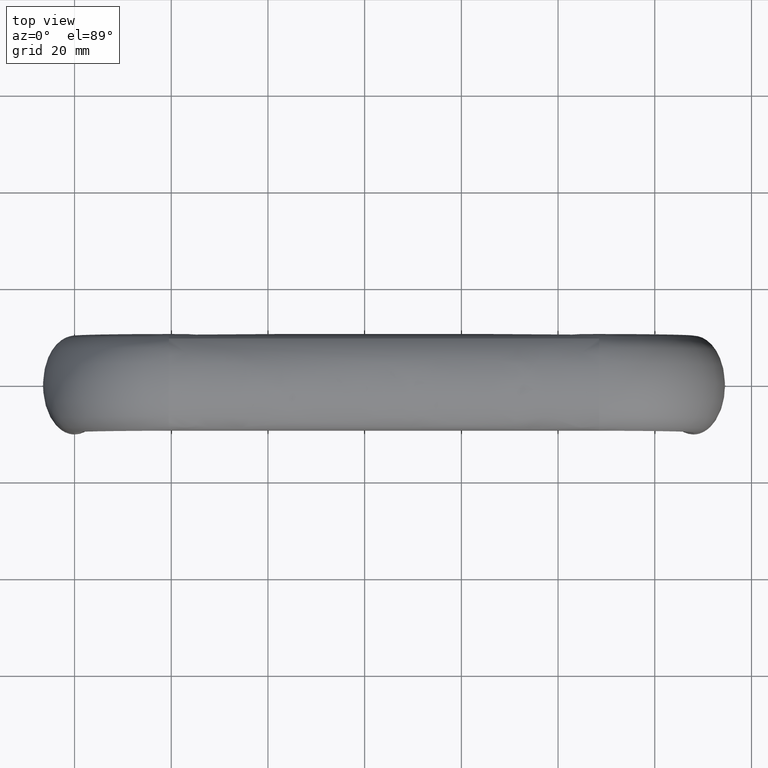
[diagram: clean part render]
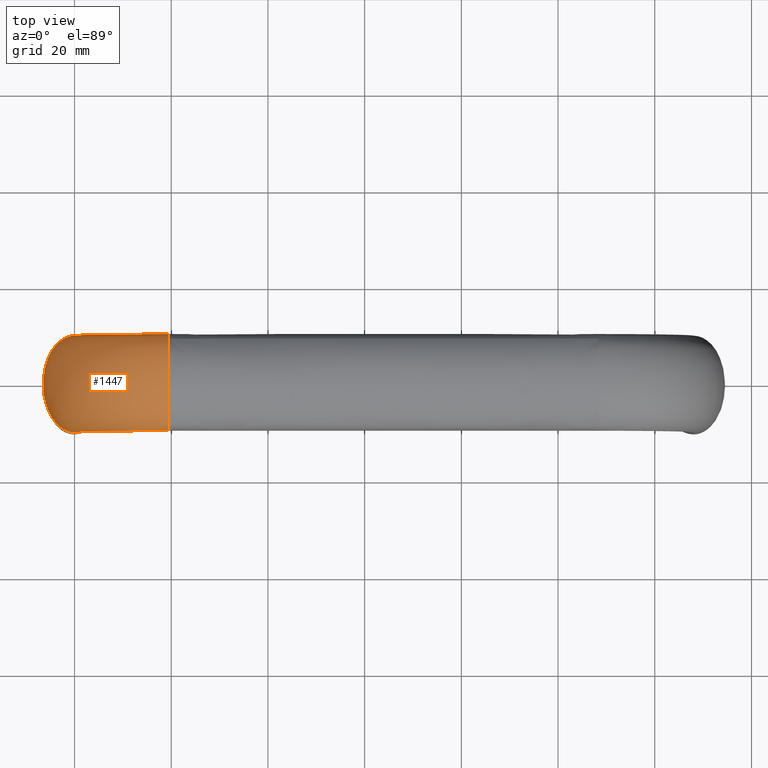
[diagram: same view with one face highlighted and labeled with its STEP entity id]
A machine part, top view. The second image highlights one B-rep face of the part: STEP entity #1447.
In plain terms, the highlighted face is a freeform B-spline surface patch.
Its self-contained STEP definition (entity closure, byte-faithful):
#998=CARTESIAN_POINT('',(19.500000000000000,9.039503756692850,47.265141685643357));
#999=VERTEX_POINT('',#998);
#1017=CARTESIAN_POINT('',(19.500000000000000,-10.0,44.499999999999950));
#1018=VERTEX_POINT('',#1017);
#1019=CARTESIAN_POINT('',(19.500000000000000,9.039503756692850,47.265141685643357));
#1020=CARTESIAN_POINT('',(19.500000000000000,8.550381046451999,47.942842478044980));
#1021=CARTESIAN_POINT('',(19.500000000000000,7.885596350320671,48.566750527716643));
#1022=CARTESIAN_POINT('',(19.500000000000000,5.219866587632820,50.299474873463701));
#1023=CARTESIAN_POINT('',(19.500000000000000,2.617993877991495,51.0));
#1024=CARTESIAN_POINT('',(19.500000000000000,-2.617993877991495,51.0));
#1025=CARTESIAN_POINT('',(19.500000000000000,-5.219866587632820,50.299474873463701));
#1026=CARTESIAN_POINT('',(19.500000000000000,-8.922269036098131,47.892913281961299));
#1027=CARTESIAN_POINT('',(19.500000000000000,-10.0,46.201696020694399));
#1028=CARTESIAN_POINT('',(19.500000000000000,-10.0,44.499999999999950));
#1029=B_SPLINE_CURVE_WITH_KNOTS('',3,(#1019,#1020,#1021,#1022,#1023,#1024,#1025,#1026,#1027,#1028),.UNSPECIFIED.,.F.,.U.,(4,2,2,2,4),(0.570000000013989,0.625000000000000,0.750000000000000,0.875000000000000,1.0),.UNSPECIFIED.);
#1030=EDGE_CURVE('',#999,#1018,#1029,.T.);
#1225=CARTESIAN_POINT('',(19.500000000000000,8.755444309227860,41.370782612510382));
#1226=VERTEX_POINT('',#1225);
#1240=CARTESIAN_POINT('',(19.500000000000000,10.0,44.499999999999950));
#1241=VERTEX_POINT('',#1240);
#1242=CARTESIAN_POINT('',(19.500000000000000,8.755444309227860,41.370782612510382));
#1243=CARTESIAN_POINT('',(19.500000000000000,9.558561397034483,42.326121193000773));
#1244=CARTESIAN_POINT('',(19.500000000000000,10.0,43.410914546568847));
#1245=CARTESIAN_POINT('',(19.500000000000000,10.0,44.499999999999950));
#1246=B_SPLINE_CURVE_WITH_KNOTS('',3,(#1242,#1243,#1244,#1245),.UNSPECIFIED.,.F.,.U.,(4,4),(0.419999999986289,0.500000000000000),.UNSPECIFIED.);
#1247=EDGE_CURVE('',#1226,#1241,#1246,.T.);
#1249=CARTESIAN_POINT('',(19.500000000000000,10.0,44.499999999999950));
#1250=CARTESIAN_POINT('',(19.500000000000000,10.0,45.452949771779302));
#1251=CARTESIAN_POINT('',(19.500000000000000,9.662023569585280,46.402613404600842));
#1252=CARTESIAN_POINT('',(19.500000000000000,9.039503756692850,47.265141685643357));
#1253=B_SPLINE_CURVE_WITH_KNOTS('',3,(#1249,#1250,#1251,#1252),.UNSPECIFIED.,.F.,.U.,(4,4),(0.500000000000000,0.570000000013990),.UNSPECIFIED.);
#1254=EDGE_CURVE('',#1241,#999,#1253,.T.);
#1260=CARTESIAN_POINT('',(3.129217387244046,8.755444309434322,25.0));
#1261=CARTESIAN_POINT('',(2.173878806627423,9.558561397185795,25.0));
#1262=CARTESIAN_POINT('',(1.089085453244511,10.0,25.0));
#1263=CARTESIAN_POINT('',(-1.701696020694420,10.0,25.0));
#1264=CARTESIAN_POINT('',(-3.392913281961285,8.922269036098131,25.0));
#1265=CARTESIAN_POINT('',(-5.799474873463730,5.219866587632820,25.0));
#1266=CARTESIAN_POINT('',(-6.500000000000000,2.617993877991495,25.0));
#1267=CARTESIAN_POINT('',(-6.500000000000000,-2.617993877991495,25.0));
#1268=CARTESIAN_POINT('',(-5.799474873463730,-5.219866587632820,25.0));
#1269=CARTESIAN_POINT('',(-3.392913281961285,-8.922269036098131,25.0));
#1270=CARTESIAN_POINT('',(-1.701696020694420,-10.0,25.0));
#1271=CARTESIAN_POINT('',(4.998172E-014,-10.0,25.0));
#1272=CARTESIAN_POINT('',(3.129242525255061,8.755444309434322,27.143280771253870));
#1273=CARTESIAN_POINT('',(2.173906213007534,9.558561397185795,27.268354742721009));
#1274=CARTESIAN_POINT('',(1.089115505749756,10.0,27.410377074506400));
#1275=CARTESIAN_POINT('',(-1.701658946265320,10.0,27.775749235914951));
#1276=CARTESIAN_POINT('',(-3.392871781341585,8.922269036098131,27.997165248405398));
#1277=CARTESIAN_POINT('',(-5.799426911635780,5.219866587632820,28.312234922394701));
#1278=CARTESIAN_POINT('',(-6.499950125228801,2.617993877991495,28.403948437618151));
#1279=CARTESIAN_POINT('',(-6.499950125228801,-2.617993877991495,28.403948437618151));
#1280=CARTESIAN_POINT('',(-5.799426911635780,-5.219866587632820,28.312234922394701));
#1281=CARTESIAN_POINT('',(-3.392871781341585,-8.922269036098131,27.997165248405398));
#1282=CARTESIAN_POINT('',(-1.701658946265315,-10.0,27.775749235914951));
#1283=CARTESIAN_POINT('',(0.000032792768265,-10.0,27.552961332617048));
#1284=CARTESIAN_POINT('',(3.555305081969468,8.755444309434322,29.285017816729340));
#1285=CARTESIAN_POINT('',(2.624831409960165,9.558561397185795,29.535075675035390));
#1286=CARTESIAN_POINT('',(1.568272326748048,10.0,29.819018047044359));
#1287=CARTESIAN_POINT('',(-1.149872568180168,10.0,30.549499211036348));
#1288=CARTESIAN_POINT('',(-2.797071966576600,8.922269036098131,30.992171761760950));
#1289=CARTESIAN_POINT('',(-5.140997195176130,5.219866587632820,31.622084181982359));
#1290=CARTESIAN_POINT('',(-5.823289525924990,2.617993877991495,31.805445156182149));
#1291=CARTESIAN_POINT('',(-5.823289525924990,-2.617993877991495,31.805445156182149));
#1292=CARTESIAN_POINT('',(-5.140997195176130,-5.219866587632820,31.622084181982359));
#1293=CARTESIAN_POINT('',(-2.797071966576050,-8.922269036098131,30.992171761760950));
#1294=CARTESIAN_POINT('',(-1.149872568180444,-10.0,30.549499211036348));
#1295=CARTESIAN_POINT('',(0.507532855556411,-10.0,30.104083867138801));
#1296=CARTESIAN_POINT('',(5.195432943796783,8.755444309434322,33.244636744775029));
#1297=CARTESIAN_POINT('',(4.360671093305921,9.558561397185795,33.725763380671289));
#1298=CARTESIAN_POINT('',(3.412793424128525,10.0,34.272085896421132));
#1299=CARTESIAN_POINT('',(0.974246552089016,10.0,35.677576399284852));
#1300=CARTESIAN_POINT('',(-0.503516074943048,8.922269036098131,36.529305501393637));
#1301=CARTESIAN_POINT('',(-2.606336842577320,5.219866587632820,37.741295581240550));
#1302=CARTESIAN_POINT('',(-3.218446164661845,2.617993877991495,38.094093326802501));
#1303=CARTESIAN_POINT('',(-3.218446164661845,-2.617993877991495,38.094093326802501));
#1304=CARTESIAN_POINT('',(-2.606336842577320,-5.219866587632820,37.741295581240550));
#1305=CARTESIAN_POINT('',(-0.503516074943599,-8.922269036098131,36.529305501393637));
#1306=CARTESIAN_POINT('',(0.974246552089294,-10.0,35.677576399284852));
#1307=CARTESIAN_POINT('',(2.461165376503490,-10.0,34.820569995099653));
#1308=CARTESIAN_POINT('',(6.408828038949688,8.755444309434322,35.060610836567477));
#1309=CARTESIAN_POINT('',(5.644875457346496,9.558561397185795,35.647711032329227));
#1310=CARTESIAN_POINT('',(4.777402186992800,10.0,36.314367234701329));
#1311=CARTESIAN_POINT('',(2.545706791283275,10.0,38.029432849052149));
#1312=CARTESIAN_POINT('',(1.193296432264130,8.922269036098131,39.068764877845503));
#1313=CARTESIAN_POINT('',(-0.731151065112885,5.219866587632820,40.547709421855799));
#1314=CARTESIAN_POINT('',(-1.291337777711756,2.617993877991495,40.978214843985363));
#1315=CARTESIAN_POINT('',(-1.291337777711756,-2.617993877991495,40.978214843985363));
#1316=CARTESIAN_POINT('',(-0.731151065112885,-5.219866587632820,40.547709421855799));
#1317=CARTESIAN_POINT('',(1.193296432264684,-8.922269036098131,39.068764877836649));
#1318=CARTESIAN_POINT('',(2.545706791283280,-10.0,38.029432849061003));
#1319=CARTESIAN_POINT('',(3.906496666715915,-10.0,36.983661132993433));
#1320=CARTESIAN_POINT('',(9.439389163429212,8.755444309434322,38.091171961053732));
#1321=CARTESIAN_POINT('',(8.852288967666116,9.558561397185795,38.855124542658260));
#1322=CARTESIAN_POINT('',(8.185632765293509,10.0,39.722597813012463));
#1323=CARTESIAN_POINT('',(6.470567150939020,10.0,41.954293208725652));
#1324=CARTESIAN_POINT('',(5.431235122155091,8.922269036098131,43.306703567735347));
#1325=CARTESIAN_POINT('',(3.952290578143170,5.219866587632820,45.231151065113991));
#1326=CARTESIAN_POINT('',(3.521785156011395,2.617993877991495,45.791337777715093));
#1327=CARTESIAN_POINT('',(3.521785156011395,-2.617993877991495,45.791337777715093));
#1328=CARTESIAN_POINT('',(3.952290578143170,-5.219866587632820,45.231151065113991));
#1329=CARTESIAN_POINT('',(5.431235122154540,-8.922269036098131,43.306703567744201));
#1330=CARTESIAN_POINT('',(6.470567150939020,-10.0,41.954293208716749));
#1331=CARTESIAN_POINT('',(7.516338867008830,-10.0,40.593503333281902));
#1332=CARTESIAN_POINT('',(11.255363255153309,8.755444309434322,39.304567056183622));
#1333=CARTESIAN_POINT('',(10.774236619254220,9.558561397185795,40.139328906674393));
#1334=CARTESIAN_POINT('',(10.227914103500760,10.0,41.087206575851461));
#1335=CARTESIAN_POINT('',(8.822423600624351,10.0,43.525753447885499));
#1336=CARTESIAN_POINT('',(7.970694498504469,8.922269036098131,45.003516074918707));
#1337=CARTESIAN_POINT('',(6.758704418655350,5.219866587632820,47.106336842543001));
#1338=CARTESIAN_POINT('',(6.405906673088980,2.617993877991495,47.718446164620900));
#1339=CARTESIAN_POINT('',(6.405906673088980,-2.617993877991495,47.718446164620900));
#1340=CARTESIAN_POINT('',(6.758704418655350,-5.219866587632820,47.106336842543001));
#1341=CARTESIAN_POINT('',(7.970694498504469,-8.922269036098131,45.003516074909797));
#1342=CARTESIAN_POINT('',(8.822423600624351,-10.0,43.525753447876653));
#1343=CARTESIAN_POINT('',(9.679430004816185,-10.0,42.038834623465647));
#1344=CARTESIAN_POINT('',(15.214982183342300,8.755444309434322,40.944694918050153));
#1345=CARTESIAN_POINT('',(14.964924325039050,9.558561397185795,41.875168590059552));
#1346=CARTESIAN_POINT('',(14.680981953033671,10.0,42.931727673271958));
#1347=CARTESIAN_POINT('',(13.950500789054381,10.0,45.649872568205602));
#1348=CARTESIAN_POINT('',(13.507828238340860,8.922269036098131,47.297071966601003));
#1349=CARTESIAN_POINT('',(12.877915818121700,5.219866587632820,49.640997195210403));
#1350=CARTESIAN_POINT('',(12.694554843926319,2.617993877991495,50.323289525965912));
#1351=CARTESIAN_POINT('',(12.694554843926319,-2.617993877991495,50.323289525965912));
#1352=CARTESIAN_POINT('',(12.877915818121700,-5.219866587632820,49.640997195210403));
#1353=CARTESIAN_POINT('',(13.507828238340860,-8.922269036098131,47.297071966609799));
#1354=CARTESIAN_POINT('',(13.950500789054381,-10.0,45.649872568214498));
#1355=CARTESIAN_POINT('',(14.395916132945301,-10.0,43.992467144474453));
#1356=CARTESIAN_POINT('',(17.356769276508889,8.755444309434322,41.361454487678607));
#1357=CARTESIAN_POINT('',(17.231695834144372,9.558561397185795,42.316497935335711));
#1358=CARTESIAN_POINT('',(17.089673974340378,10.0,43.400978050230577));
#1359=CARTESIAN_POINT('',(16.724302669476351,10.0,46.191020352625600));
#1360=CARTESIAN_POINT('',(16.502886928091851,8.922269036098131,47.881842823258197));
#1361=CARTESIAN_POINT('',(16.187817438960849,5.219866587632820,50.287893282920002));
#1362=CARTESIAN_POINT('',(16.096103941902200,2.617993877991495,50.988279623751801));
#1363=CARTESIAN_POINT('',(16.096103941902200,-2.617993877991495,50.988279623751801));
#1364=CARTESIAN_POINT('',(16.187817438960849,-5.219866587632820,50.287893282920002));
#1365=CARTESIAN_POINT('',(16.502886928091900,-8.922269036098131,47.881842823248597));
#1366=CARTESIAN_POINT('',(16.724302669476302,-10.0,46.191020352625600));
#1367=CARTESIAN_POINT('',(16.947090050490129,-10.0,44.489775046287178));
#1368=CARTESIAN_POINT('',(19.500000000000000,8.755444309434322,41.370782612755981));
#1369=CARTESIAN_POINT('',(19.500000000000000,9.558561397185795,42.326121193372600));
#1370=CARTESIAN_POINT('',(19.500000000000000,10.0,43.410914546755500));
#1371=CARTESIAN_POINT('',(19.500000000000000,10.0,46.201696020694399));
#1372=CARTESIAN_POINT('',(19.500000000000000,8.922269036098131,47.892913281961299));
#1373=CARTESIAN_POINT('',(19.500000000000000,5.219866587632820,50.299474873463701));
#1374=CARTESIAN_POINT('',(19.500000000000000,2.617993877991495,51.0));
#1375=CARTESIAN_POINT('',(19.500000000000000,-2.617993877991495,51.0));
#1376=CARTESIAN_POINT('',(19.500000000000000,-5.219866587632820,50.299474873463701));
#1377=CARTESIAN_POINT('',(19.500000000000000,-8.922269036098131,47.892913281961299));
#1378=CARTESIAN_POINT('',(19.500000000000000,-10.0,46.201696020694399));
#1379=CARTESIAN_POINT('',(19.500000000000000,-10.0,44.499999999999950));
#1380=B_SPLINE_SURFACE_WITH_KNOTS('',3,3,((#1260,#1272,#1284,#1296,#1308,#1320,#1332,#1344,#1356,#1368),(#1261,#1273,#1285,#1297,#1309,#1321,#1333,#1345,#1357,#1369),(#1262,#1274,#1286,#1298,#1310,#1322,#1334,#1346,#1358,#1370),(#1263,#1275,#1287,#1299,#1311,#1323,#1335,#1347,#1359,#1371),(#1264,#1276,#1288,#1300,#1312,#1324,#1336,#1348,#1360,#1372),(#1265,#1277,#1289,#1301,#1313,#1325,#1337,#1349,#1361,#1373),(#1266,#1278,#1290,#1302,#1314,#1326,#1338,#1350,#1362,#1374),(#1267,#1279,#1291,#1303,#1315,#1327,#1339,#1351,#1363,#1375),(#1268,#1280,#1292,#1304,#1316,#1328,#1340,#1352,#1364,#1376),(#1269,#1281,#1293,#1305,#1317,#1329,#1341,#1353,#1365,#1377),(#1270,#1282,#1294,#1306,#1318,#1330,#1342,#1354,#1366,#1378),(#1271,#1283,#1295,#1307,#1319,#1331,#1343,#1355,#1367,#1379)),.UNSPECIFIED.,.F.,.F.,.U.,(4,2,2,2,2,4),(4,2,2,2,4),(0.0,4.923917860288078,12.617539516988201,20.311161173688319,28.004782830388439,35.698404487088560),(0.0,10.123008709093240,20.246017418186341,30.369026127279579,40.492034836372817),.UNSPECIFIED.);
#1381=ORIENTED_EDGE('',*,*,#1247,.F.);
#1382=CARTESIAN_POINT('',(3.129217387489629,8.755444309227849,25.0));
#1383=VERTEX_POINT('',#1382);
#1384=CARTESIAN_POINT('',(3.129217387489629,8.755444309227849,25.0));
#1385=CARTESIAN_POINT('',(3.129242525255062,8.755444309434322,27.143280771253870));
#1386=CARTESIAN_POINT('',(3.555305081969467,8.755444309434322,29.285017816729340));
#1387=CARTESIAN_POINT('',(5.195432943796784,8.755444309434322,33.244636744775029));
#1388=CARTESIAN_POINT('',(6.408828038949689,8.755444309434322,35.060610836567470));
#1389=CARTESIAN_POINT('',(9.439389163429212,8.755444309434322,38.091171961053732));
#1390=CARTESIAN_POINT('',(11.255363255153309,8.755444309434322,39.304567056183622));
#1391=CARTESIAN_POINT('',(15.214982183342300,8.755444309434322,40.944694918050153));
#1392=CARTESIAN_POINT('',(17.356769276508889,8.755444309434322,41.361454487678607));
#1393=CARTESIAN_POINT('',(19.500000000000000,8.755444309227860,41.370782612510382));
#1394=B_SPLINE_CURVE_WITH_KNOTS('',3,(#1384,#1385,#1386,#1387,#1388,#1389,#1390,#1391,#1392,#1393),.UNSPECIFIED.,.F.,.U.,(4,2,2,2,4),(0.124837047863849,0.163075295229177,0.201313542594506,0.239551789959834,0.277790037325163),.UNSPECIFIED.);
#1395=EDGE_CURVE('',#1383,#1226,#1394,.T.);
#1396=ORIENTED_EDGE('',*,*,#1395,.F.);
#1397=CARTESIAN_POINT('',(0.0,10.0,25.0));
#1398=VERTEX_POINT('',#1397);
#1399=CARTESIAN_POINT('',(3.129217387489629,8.755444309227849,25.0));
#1400=CARTESIAN_POINT('',(2.173878806999225,9.558561397034476,25.0));
#1401=CARTESIAN_POINT('',(1.089085453431123,10.0,25.0));
#1402=CARTESIAN_POINT('',(0.0,10.0,25.0));
#1403=B_SPLINE_CURVE_WITH_KNOTS('',3,(#1399,#1400,#1401,#1402),.UNSPECIFIED.,.F.,.U.,(4,4),(0.419999999986289,0.500000000000000),.UNSPECIFIED.);
#1404=EDGE_CURVE('',#1383,#1398,#1403,.T.);
#1405=ORIENTED_EDGE('',*,*,#1404,.T.);
#1406=CARTESIAN_POINT('',(-2.765141685643417,9.039503756692852,25.0));
#1407=VERTEX_POINT('',#1406);
#1408=CARTESIAN_POINT('',(0.0,10.0,25.0));
#1409=CARTESIAN_POINT('',(-0.952949771779357,10.0,25.0));
#1410=CARTESIAN_POINT('',(-1.902613404600903,9.662023569585280,25.0));
#1411=CARTESIAN_POINT('',(-2.765141685643417,9.039503756692852,25.0));
#1412=B_SPLINE_CURVE_WITH_KNOTS('',3,(#1408,#1409,#1410,#1411),.UNSPECIFIED.,.F.,.U.,(4,4),(0.500000000000000,0.570000000013990),.UNSPECIFIED.);
#1413=EDGE_CURVE('',#1398,#1407,#1412,.T.);
#1414=ORIENTED_EDGE('',*,*,#1413,.T.);
#1415=CARTESIAN_POINT('',(3.747003E-014,-10.0,25.0));
#1416=VERTEX_POINT('',#1415);
#1417=CARTESIAN_POINT('',(-2.765141685643417,9.039503756692852,25.0));
#1418=CARTESIAN_POINT('',(-3.442842478045029,8.550381046452003,25.0));
#1419=CARTESIAN_POINT('',(-4.066750527716681,7.885596350320673,25.0));
#1420=CARTESIAN_POINT('',(-5.799474873463780,5.219866587632820,25.0));
#1421=CARTESIAN_POINT('',(-6.500000000000000,2.617993877991495,25.0));
#1422=CARTESIAN_POINT('',(-6.500000000000000,-2.617993877991495,25.0));
#1423=CARTESIAN_POINT('',(-5.799474873463780,-5.219866587632820,25.0));
#1424=CARTESIAN_POINT('',(-3.392913281961335,-8.922269036098131,25.0));
#1425=CARTESIAN_POINT('',(-1.701696020694470,-10.0,25.0));
#1426=CARTESIAN_POINT('',(0.0,-10.0,25.0));
#1427=B_SPLINE_CURVE_WITH_KNOTS('',3,(#1417,#1418,#1419,#1420,#1421,#1422,#1423,#1424,#1425,#1426),.UNSPECIFIED.,.F.,.U.,(4,2,2,2,4),(0.570000000013989,0.625000000000000,0.750000000000000,0.875000000000000,1.0),.UNSPECIFIED.);
#1428=EDGE_CURVE('',#1407,#1416,#1427,.T.);
#1429=ORIENTED_EDGE('',*,*,#1428,.T.);
#1430=CARTESIAN_POINT('',(4.996004E-014,-10.0,25.0));
#1431=CARTESIAN_POINT('',(0.000032792768265,-10.0,27.552961332617048));
#1432=CARTESIAN_POINT('',(0.507532855556410,-10.0,30.104083867138801));
#1433=CARTESIAN_POINT('',(2.461165376503490,-10.0,34.820569995099653));
#1434=CARTESIAN_POINT('',(3.906496666715915,-10.0,36.983661132993433));
#1435=CARTESIAN_POINT('',(7.516338867008830,-10.0,40.593503333281902));
#1436=CARTESIAN_POINT('',(9.679430004816185,-10.0,42.038834623465647));
#1437=CARTESIAN_POINT('',(14.395916132945301,-10.0,43.992467144474453));
#1438=CARTESIAN_POINT('',(16.947090050490129,-10.0,44.489775046287178));
#1439=CARTESIAN_POINT('',(19.500000000000000,-10.0,44.499999999999950));
#1440=B_SPLINE_CURVE_WITH_KNOTS('',3,(#1430,#1431,#1432,#1433,#1434,#1435,#1436,#1437,#1438,#1439),.UNSPECIFIED.,.F.,.U.,(4,2,2,2,4),(0.124837047863849,0.163075295229177,0.201313542594506,0.239551789959834,0.277790037325163),.UNSPECIFIED.);
#1441=EDGE_CURVE('',#1416,#1018,#1440,.T.);
#1442=ORIENTED_EDGE('',*,*,#1441,.T.);
#1443=ORIENTED_EDGE('',*,*,#1030,.F.);
#1444=ORIENTED_EDGE('',*,*,#1254,.F.);
#1445=EDGE_LOOP('',(#1381,#1396,#1405,#1414,#1429,#1442,#1443,#1444));
#1446=FACE_OUTER_BOUND('',#1445,.T.);
#1447=ADVANCED_FACE('',(#1446),#1380,.T.);